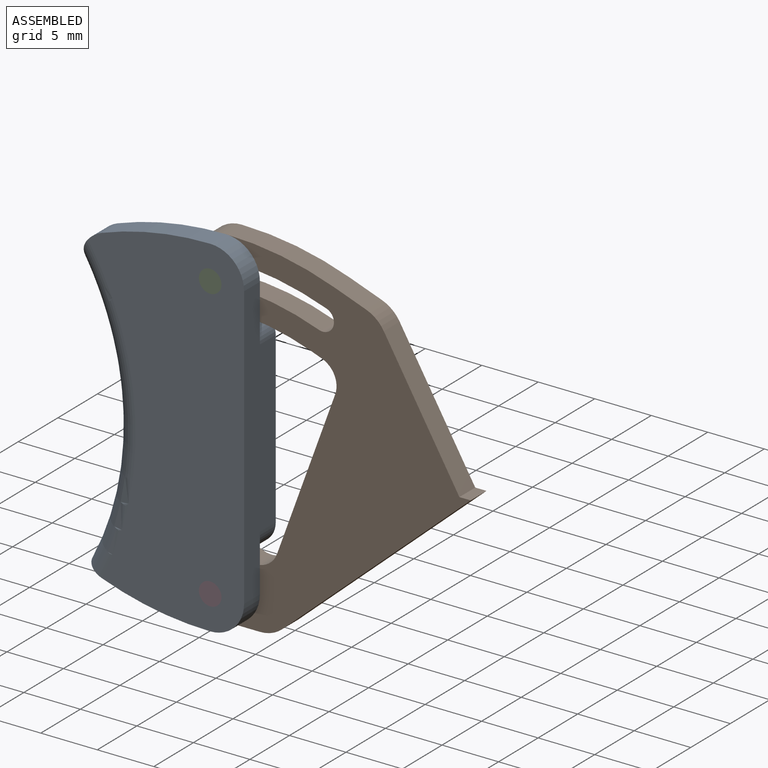
[diagram: assembled view]
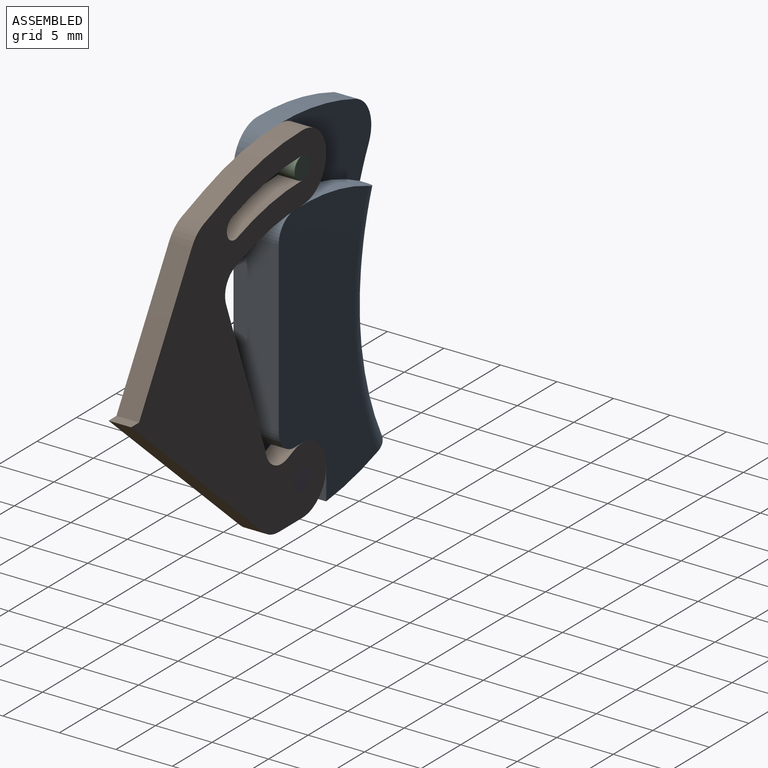
[diagram: assembled view, second angle]
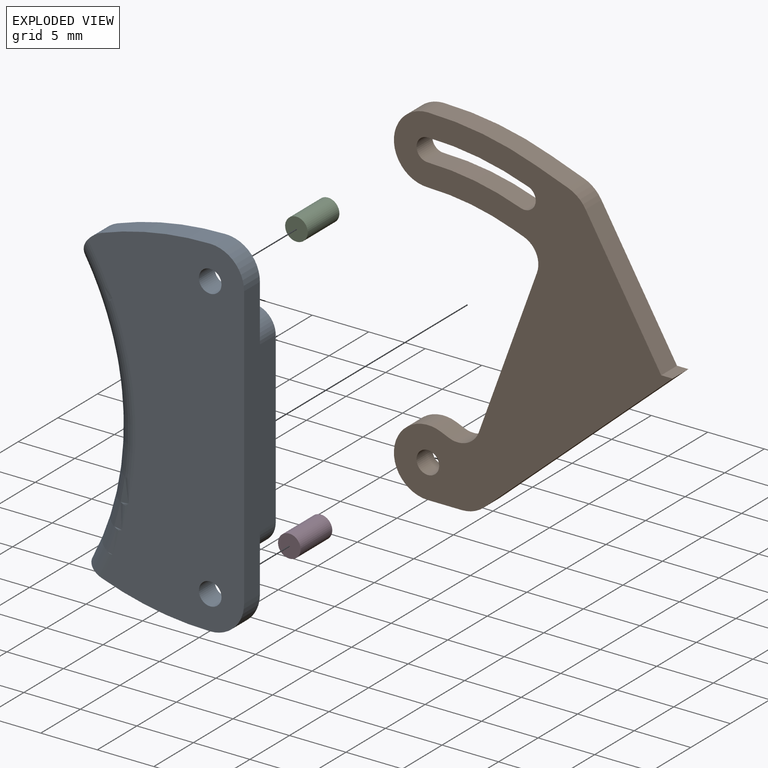
[diagram: exploded view]
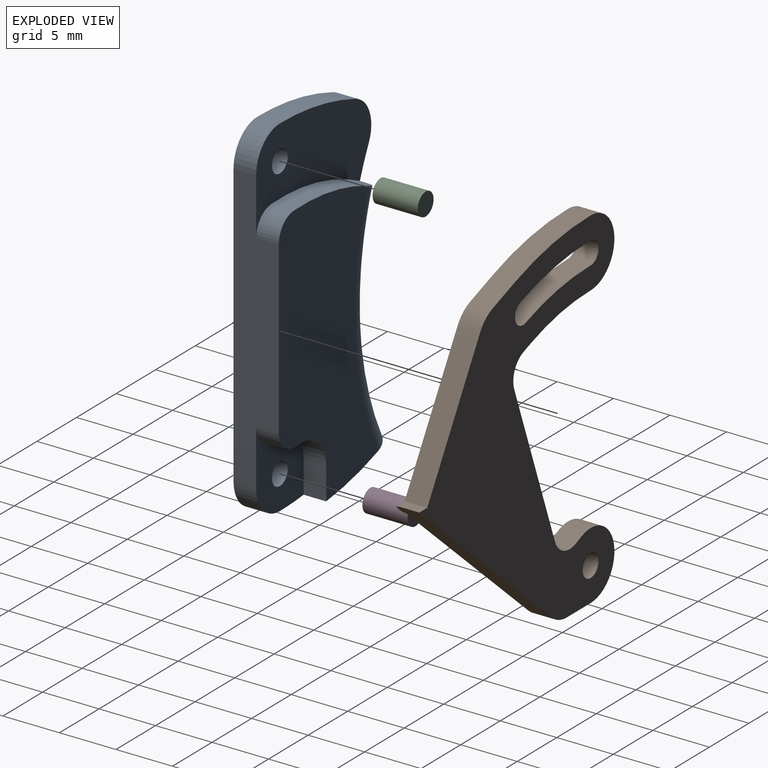
[diagram: exploded view, second angle]
ASSEMBLY  parts=4 mates=3
PART A: 19 faces, bbox 15.5x4x31.2 mm
  f0: plane 2.84x2mm, normal (1,0,0), area 5.7mm2, adj f1,f5,f12,f18
  f1: plane 8x6mm, normal (0,1,0), area 29.7mm2, adj f0,f4,f6,f10,f12,f13,f16,f18
  f2: torus R=27mm, axis (0,-1,0), area 148.1mm2, adj f5,f9,f11,f14,f15,f18
  f3: cylinder r=1mm len=2mm, axis (0,1,0), area 12.6mm2, adj f11,f15
  f4: cylinder r=1mm len=2mm, axis (0,1,0), area 12.6mm2, adj f1,f11
  f5: plane 24.84x12.58mm, normal (0,1,0), area 219.6mm2, adj f0,f2,f6,f12,f13,f14,f16,f17
  f6: plane 25x4mm, normal (1,0,0), area 79.9mm2, adj f1,f5,f7,f10,f11,f15,f16,f17
  f7: cylinder r=3mm len=3mm, axis (0,1,0), area 9.4mm2, adj f6,f8,f11,f15
  f8: cylinder r=28mm len=9.58mm, axis (0,1,0), area 19.5mm2, adj f7,f9,f11,f15
  f9: cylinder r=3mm len=4.16mm, axis (0,1,0), area 7.5mm2, adj f2,f8,f11,f15
  f10: cylinder r=3mm len=3mm, axis (0,1,0), area 9.4mm2, adj f1,f6,f11,f18
  f11: plane 31x13.81mm, normal (0,-1,0), area 321.7mm2, adj f2,f3,f4,f6,f7,f8,f9,f10
  f12: cylinder r=3mm len=3mm, axis (0,1,0), area 9.4mm2, adj f0,f1,f5,f13
  f13: plane 2x1mm, normal (0,0,-1), area 2mm2, adj f1,f5,f12,f16
  f14: cylinder r=22mm len=11.21mm, axis (0,1,0), area 22.4mm2, adj f2,f5,f15,f17
  f15: plane 14.55x8.46mm, normal (0,1,0), area 82.1mm2, adj f2,f3,f6,f7,f8,f9,f14,f17
  f16: cylinder r=2mm len=2mm, axis (0,1,0), area 6.3mm2, adj f1,f5,f6,f13
  f17: cylinder r=2mm len=2mm, axis (0,1,0), area 6.1mm2, adj f5,f6,f14,f15
  f18: cylinder r=28mm len=11.44mm, axis (0,1,0), area 39.4mm2, adj f0,f1,f2,f5,f10,f11
PART B: 23 faces, bbox 24.7x2x31 mm
  f0: cylinder r=1mm len=2mm, axis (0,1,0), area 6.3mm2, adj f1,f18,f19,f20
  f1: cylinder r=24mm len=8.21mm, axis (0,1,0), area 16.8mm2, adj f0,f2,f19,f20
  f2: cylinder r=1mm len=2mm, axis (0,1,0), area 6.3mm2, adj f1,f18,f19,f20
  f3: cylinder r=22mm len=7.52mm, axis (0,1,0), area 15.4mm2, adj f4,f17,f19,f20
  f4: plane 2x0.94mm, normal (-0.34,0,-0.94), area 2mm2, adj f3,f19,f20,f21
  f5: plane 14.14x5.15mm, normal (-0.94,0,0.34), area 30.1mm2, adj f19,f20,f21,f22
  f6: plane 2x0.7mm, normal (0.39,0,0.92), area 1.5mm2, adj f7,f19,f20,f22
  f7: cylinder r=3mm len=6mm, axis (0,1,0), area 21.2mm2, adj f6,f8,f19,f20
  f8: plane 3x2mm, normal (0,0,-1), area 6mm2, adj f7,f9,f19,f20
  f9: cylinder r=3mm len=2mm, axis (0,1,0), area 4.3mm2, adj f8,f10,f19,f20
  f10: plane 16.66x14.75mm, normal (0.66,0,-0.75), area 44.5mm2, adj f9,f11,f19,f20
  f11: plane 2x1mm, normal (0,0,1), area 2mm2, adj f10,f12,f19,f20
  f12: plane 11.48x6.69mm, normal (0.86,0,0.5), area 26.6mm2, adj f11,f13,f19,f20
  f13: cylinder r=3mm len=2mm, axis (0,1,0), area 4.2mm2, adj f12,f14,f19,f20
  f14: plane 2.82x2mm, normal (0.34,0,0.94), area 6mm2, adj f13,f15,f19,f20
  f15: cylinder r=28mm len=9.58mm, axis (0,1,0), area 19.5mm2, adj f14,f17,f19,f20
  f16: cylinder r=1mm len=2mm, axis (0,1,0), area 12.6mm2, adj f19,f20
  f17: cylinder r=3mm len=6mm, axis (0,1,0), area 18.8mm2, adj f3,f15,f19,f20
  f18: cylinder r=26mm len=8.89mm, axis (0,1,0), area 18.2mm2, adj f0,f2,f19,f20
  f19: plane 31x24.65mm, normal (0,-1,0), area 304.2mm2, adj f0,f1,f2,f3,f4,f5,f6,f7
  f20: plane 31x24.65mm, normal (0,1,0), area 304.2mm2, adj f0,f1,f2,f3,f4,f5,f6,f7
  f21: cylinder r=2mm len=2.56mm, axis (0,1,0), area 6.3mm2, adj f4,f5,f19,f20
  f22: cylinder r=2mm len=2.65mm, axis (0,-1,0), area 6.5mm2, adj f5,f6,f19,f20
PART C: 3 faces, bbox 2x4x2 mm
  f0: cylinder r=1mm len=4mm, axis (0,1,0), area 25.1mm2, adj f1,f2
  f1: plane 2x2mm, normal (0,-1,0), area 3.1mm2, adj f0
  f2: plane 2x2mm, normal (0,1,0), area 3.1mm2, adj f0
PART D: same geometry as C
PLACE A rot(axis=(0.01,-1,0.08),0deg) t=(-9.1,-10.87,5.4)mm
PLACE B rot(axis=(0.02,-1,0.01),0deg) t=(-9.1,-10.87,5.4)mm
PLACE C t=(-9.1,-10.87,5.4)mm fixed
PLACE D rot(axis=(0.01,-1,0.08),0deg) t=(-9.1,-10.87,-19.6)mm
MATE revolute B.f16 <-> D.f0  axis (0,1,0) through (-9.1,-10.87,-19.6)mm
MATE revolute C.f0 <-> A.f3  axis (0,-1,0) through (-9.1,-14.87,5.4)mm
MATE revolute D.f0 <-> A.f4  axis (0,-1,0) through (-9.1,-14.87,-19.6)mm
